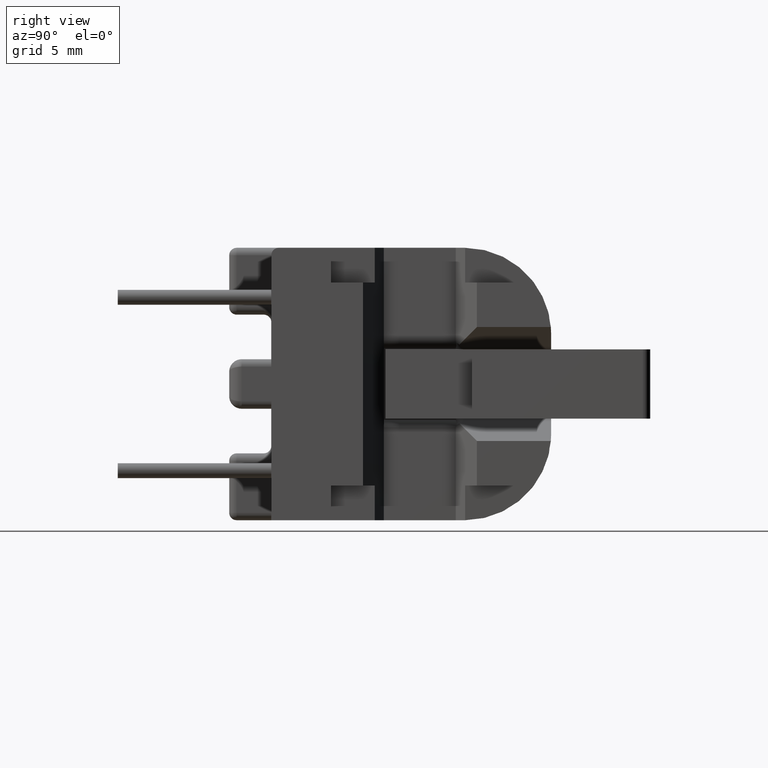
[diagram: clean part render]
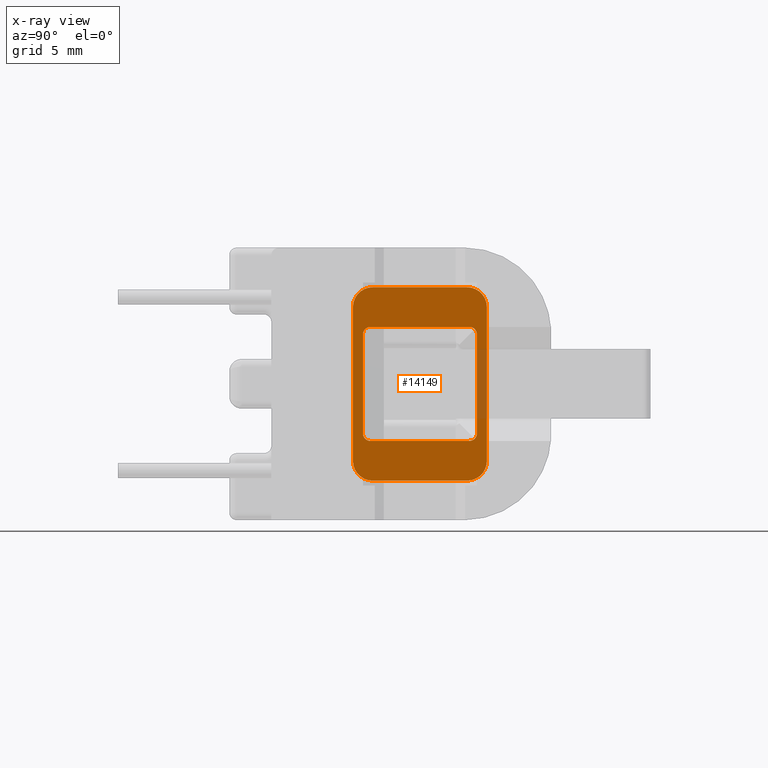
[diagram: x-ray — body ghosted, one internal face saturated and labeled with its STEP entity id]
A machine part, right view, then the same camera in x-ray: the body is ghosted and one INTERNAL B-rep face — a face not visible from any outside direction — is saturated and labeled: STEP entity #14149.
In plain terms, the highlighted planar face has unit normal (-1, 0, -0).
Its self-contained STEP definition (entity closure, byte-faithful):
#1 = VERTEX_POINT ( 'NONE', #24749 ) ;
#288 = LINE ( 'NONE', #4880, #1247 ) ;
#487 = EDGE_LOOP ( 'NONE', ( #21296, #20754, #19882, #31112, #20182, #19111, #1619, #16403 ) ) ;
#577 = CARTESIAN_POINT ( 'NONE',  ( 3.262499999999999734, 2.000000000000000000, 2.299999999999999822 ) ) ;
#1247 = VECTOR ( 'NONE', #7394, 1000.000000000000000 ) ;
#1264 = CIRCLE ( 'NONE', #29732, 0.2999999999999999334 ) ;
#1475 = CARTESIAN_POINT ( 'NONE',  ( 3.262499999999998845, 2.705000000000002292, 3.104999999999996874 ) ) ;
#1619 = ORIENTED_EDGE ( 'NONE', *, *, #23575, .F. ) ;
#1821 = VERTEX_POINT ( 'NONE', #17373 ) ;
#2206 = EDGE_CURVE ( 'NONE', #7733, #10146, #2822, .T. ) ;
#2775 = LINE ( 'NONE', #29223, #35532 ) ;
#2822 = LINE ( 'NONE', #12845, #30879 ) ;
#2921 = DIRECTION ( 'NONE',  ( 0.0000000000000000000, 0.0000000000000000000, 1.000000000000000000 ) ) ;
#2984 = DIRECTION ( 'NONE',  ( -1.000000000000000000, -0.0000000000000000000, -0.0000000000000000000 ) ) ;
#3062 = VECTOR ( 'NONE', #3199, 1000.000000000000000 ) ;
#3199 = DIRECTION ( 'NONE',  ( 0.0000000000000000000, 1.000000000000000000, 0.0000000000000000000 ) ) ;
#3657 = EDGE_CURVE ( 'NONE', #10146, #23283, #1264, .T. ) ;
#3900 = AXIS2_PLACEMENT_3D ( 'NONE', #29394, #11492, #26005 ) ;
#3989 = ORIENTED_EDGE ( 'NONE', *, *, #28928, .F. ) ;
#4445 = DIRECTION ( 'NONE',  ( 0.0000000000000000000, -1.000000000000000000, 0.0000000000000000000 ) ) ;
#4880 = CARTESIAN_POINT ( 'NONE',  ( 3.262499999999999289, -2.705000000000001403, -3.104999999999998206 ) ) ;
#5247 = CARTESIAN_POINT ( 'NONE',  ( 3.262499999999999734, 2.000000000000000000, -2.299999999999999822 ) ) ;
#5272 = VERTEX_POINT ( 'NONE', #13719 ) ;
#5469 = DIRECTION ( 'NONE',  ( 0.0000000000000000000, 0.0000000000000000000, -1.000000000000000000 ) ) ;
#5590 = EDGE_CURVE ( 'NONE', #29038, #1, #10242, .T. ) ;
#5834 = DIRECTION ( 'NONE',  ( 5.421010862427510337E-16, -5.421010862427510337E-15, -1.000000000000000000 ) ) ;
#6139 = AXIS2_PLACEMENT_3D ( 'NONE', #14874, #35786, #24000 ) ;
#7002 = LINE ( 'NONE', #32428, #12545 ) ;
#7394 = DIRECTION ( 'NONE',  ( -0.0000000000000000000, -1.396717774538492064E-16, 1.000000000000000000 ) ) ;
#7454 = VERTEX_POINT ( 'NONE', #1475 ) ;
#7466 = CARTESIAN_POINT ( 'NONE',  ( 3.262499999999999289, 1.904999999999998250, -3.905000000000001581 ) ) ;
#7733 = VERTEX_POINT ( 'NONE', #20590 ) ;
#8042 = CARTESIAN_POINT ( 'NONE',  ( 3.262499999999998845, 1.905000000000000915, -3.104999999999999538 ) ) ;
#8449 = DIRECTION ( 'NONE',  ( 0.0000000000000000000, 0.0000000000000000000, 1.000000000000000000 ) ) ;
#8546 = CIRCLE ( 'NONE', #34505, 0.8000000000000020428 ) ;
#8773 = EDGE_CURVE ( 'NONE', #18458, #25622, #7002, .T. ) ;
#8939 = DIRECTION ( 'NONE',  ( 1.000000000000000000, 0.0000000000000000000, 0.0000000000000000000 ) ) ;
#9288 = ORIENTED_EDGE ( 'NONE', *, *, #29273, .F. ) ;
#9737 = ORIENTED_EDGE ( 'NONE', *, *, #5590, .F. ) ;
#10146 = VERTEX_POINT ( 'NONE', #13200 ) ;
#10242 = LINE ( 'NONE', #17430, #14463 ) ;
#10714 = EDGE_CURVE ( 'NONE', #1821, #38745, #288, .T. ) ;
#10767 = CARTESIAN_POINT ( 'NONE',  ( 3.262499999999999734, 2.299999999999999822, 2.299999999999999822 ) ) ;
#11321 = VERTEX_POINT ( 'NONE', #18435 ) ;
#11443 = LINE ( 'NONE', #10767, #12795 ) ;
#11447 = CARTESIAN_POINT ( 'NONE',  ( 3.262499999999999734, 2.000000000000000000, -2.000000000000000000 ) ) ;
#11492 = DIRECTION ( 'NONE',  ( 1.000000000000000000, 0.0000000000000000000, 0.0000000000000000000 ) ) ;
#12034 = AXIS2_PLACEMENT_3D ( 'NONE', #25886, #19588, #34760 ) ;
#12545 = VECTOR ( 'NONE', #5469, 1000.000000000000000 ) ;
#12795 = VECTOR ( 'NONE', #16767, 1000.000000000000000 ) ;
#12813 = VERTEX_POINT ( 'NONE', #27540 ) ;
#12845 = CARTESIAN_POINT ( 'NONE',  ( 3.262499999999999734, 2.299999999999999822, 2.299999999999999822 ) ) ;
#12996 = VERTEX_POINT ( 'NONE', #22752 ) ;
#13200 = CARTESIAN_POINT ( 'NONE',  ( 3.262499999999999734, 2.299999999999999822, 2.000000000000000000 ) ) ;
#13685 = VERTEX_POINT ( 'NONE', #18250 ) ;
#13719 = CARTESIAN_POINT ( 'NONE',  ( 3.262499999999999734, -2.000000000000000000, -2.299999999999999822 ) ) ;
#13851 = VECTOR ( 'NONE', #4445, 1000.000000000000000 ) ;
#14149 = ADVANCED_FACE ( 'NONE', ( #18412, #28716 ), #35918, .F. ) ;
#14463 = VECTOR ( 'NONE', #14920, 1000.000000000000000 ) ;
#14487 = DIRECTION ( 'NONE',  ( 5.421010862427510337E-16, -1.000000000000000000, 3.252606517456506202E-15 ) ) ;
#14874 = CARTESIAN_POINT ( 'NONE',  ( 3.262499999999999289, 0.0000000000000000000, 0.0000000000000000000 ) ) ;
#14920 = DIRECTION ( 'NONE',  ( -0.0000000000000000000, 1.000000000000000000, 2.276539994720218363E-16 ) ) ;
#15250 = CIRCLE ( 'NONE', #3900, 0.2999999999999999334 ) ;
#15458 = AXIS2_PLACEMENT_3D ( 'NONE', #11447, #26335, #8449 ) ;
#16276 = DIRECTION ( 'NONE',  ( 0.0000000000000000000, 0.0000000000000000000, 1.000000000000000000 ) ) ;
#16327 = CIRCLE ( 'NONE', #33897, 0.2999999999999999334 ) ;
#16390 = CIRCLE ( 'NONE', #27993, 0.8000000000000017097 ) ;
#16403 = ORIENTED_EDGE ( 'NONE', *, *, #27456, .F. ) ;
#16519 = ORIENTED_EDGE ( 'NONE', *, *, #35014, .F. ) ;
#16767 = DIRECTION ( 'NONE',  ( 0.0000000000000000000, -1.000000000000000000, 0.0000000000000000000 ) ) ;
#17373 = CARTESIAN_POINT ( 'NONE',  ( 3.262499999999998845, -2.705000000000000959, -3.104999999999998206 ) ) ;
#17430 = CARTESIAN_POINT ( 'NONE',  ( 3.262499999999999289, -1.904999999999997362, 3.905000000000000249 ) ) ;
#17522 = DIRECTION ( 'NONE',  ( 0.0000000000000000000, 1.396717774538492311E-16, -1.000000000000000000 ) ) ;
#17729 = DIRECTION ( 'NONE',  ( -1.000000000000000000, -0.0000000000000000000, 0.0000000000000000000 ) ) ;
#18250 = CARTESIAN_POINT ( 'NONE',  ( 3.262499999999999289, -1.905000000000003579, -3.905000000000001581 ) ) ;
#18412 = FACE_OUTER_BOUND ( 'NONE', #33278, .T. ) ;
#18435 = CARTESIAN_POINT ( 'NONE',  ( 3.262499999999999289, 2.705000000000003180, -3.104999999999998206 ) ) ;
#18458 = VERTEX_POINT ( 'NONE', #29757 ) ;
#18892 = CARTESIAN_POINT ( 'NONE',  ( 3.262499999999999734, -2.299999999999999822, -2.000000000000000000 ) ) ;
#19111 = ORIENTED_EDGE ( 'NONE', *, *, #2206, .F. ) ;
#19195 = CIRCLE ( 'NONE', #12034, 0.8000000000000020428 ) ;
#19588 = DIRECTION ( 'NONE',  ( -1.000000000000000000, -0.0000000000000000000, 0.0000000000000000000 ) ) ;
#19606 = ORIENTED_EDGE ( 'NONE', *, *, #19999, .F. ) ;
#19846 = CARTESIAN_POINT ( 'NONE',  ( 3.262499999999999734, -2.000000000000000000, 2.299999999999999822 ) ) ;
#19882 = ORIENTED_EDGE ( 'NONE', *, *, #29491, .F. ) ;
#19999 = EDGE_CURVE ( 'NONE', #11321, #12813, #8546, .T. ) ;
#20182 = ORIENTED_EDGE ( 'NONE', *, *, #3657, .F. ) ;
#20390 = VECTOR ( 'NONE', #17522, 1000.000000000000000 ) ;
#20447 = EDGE_CURVE ( 'NONE', #1, #7454, #19195, .T. ) ;
#20590 = CARTESIAN_POINT ( 'NONE',  ( 3.262499999999999734, 2.299999999999999822, -2.000000000000000000 ) ) ;
#20754 = ORIENTED_EDGE ( 'NONE', *, *, #8773, .F. ) ;
#21296 = ORIENTED_EDGE ( 'NONE', *, *, #30462, .F. ) ;
#21950 = CARTESIAN_POINT ( 'NONE',  ( 3.262499999999998845, -1.904999999999997362, 3.905000000000000693 ) ) ;
#22752 = CARTESIAN_POINT ( 'NONE',  ( 3.262499999999999289, 2.705000000000002736, 0.0000000000000000000 ) ) ;
#23283 = VERTEX_POINT ( 'NONE', #577 ) ;
#23575 = EDGE_CURVE ( 'NONE', #28029, #7733, #29267, .T. ) ;
#24000 = DIRECTION ( 'NONE',  ( -0.0000000000000000000, 0.0000000000000000000, 1.000000000000000000 ) ) ;
#24749 = CARTESIAN_POINT ( 'NONE',  ( 3.262499999999999289, 1.905000000000002691, 3.905000000000001137 ) ) ;
#25622 = VERTEX_POINT ( 'NONE', #18892 ) ;
#25886 = CARTESIAN_POINT ( 'NONE',  ( 3.262499999999998845, 1.905000000000000027, 3.104999999999998650 ) ) ;
#26005 = DIRECTION ( 'NONE',  ( 0.0000000000000000000, 0.0000000000000000000, 1.000000000000000000 ) ) ;
#26335 = DIRECTION ( 'NONE',  ( 1.000000000000000000, 0.0000000000000000000, 0.0000000000000000000 ) ) ;
#26609 = CARTESIAN_POINT ( 'NONE',  ( 3.262499999999998845, -1.905000000000000027, 3.104999999999998650 ) ) ;
#26947 = DIRECTION ( 'NONE',  ( 1.000000000000000000, 0.0000000000000000000, 0.0000000000000000000 ) ) ;
#27275 = ORIENTED_EDGE ( 'NONE', *, *, #36435, .F. ) ;
#27420 = ORIENTED_EDGE ( 'NONE', *, *, #10714, .F. ) ;
#27456 = EDGE_CURVE ( 'NONE', #5272, #28029, #27836, .T. ) ;
#27540 = CARTESIAN_POINT ( 'NONE',  ( 3.262499999999998845, 1.904999999999998250, -3.905000000000001581 ) ) ;
#27836 = LINE ( 'NONE', #30113, #3062 ) ;
#27865 = EDGE_CURVE ( 'NONE', #23283, #35132, #11443, .T. ) ;
#27993 = AXIS2_PLACEMENT_3D ( 'NONE', #26609, #17729, #14487 ) ;
#28029 = VERTEX_POINT ( 'NONE', #5247 ) ;
#28716 = FACE_BOUND ( 'NONE', #487, .T. ) ;
#28928 = EDGE_CURVE ( 'NONE', #38745, #29038, #16390, .T. ) ;
#28946 = DIRECTION ( 'NONE',  ( -1.000000000000000000, -0.0000000000000000000, -0.0000000000000000000 ) ) ;
#29038 = VERTEX_POINT ( 'NONE', #21950 ) ;
#29223 = CARTESIAN_POINT ( 'NONE',  ( 3.262499999999999289, 2.705000000000002292, 3.104999999999996430 ) ) ;
#29267 = CIRCLE ( 'NONE', #15458, 0.2999999999999999334 ) ;
#29273 = EDGE_CURVE ( 'NONE', #7454, #12996, #2775, .T. ) ;
#29394 = CARTESIAN_POINT ( 'NONE',  ( 3.262499999999999734, -2.000000000000000000, -2.000000000000000000 ) ) ;
#29491 = EDGE_CURVE ( 'NONE', #35132, #18458, #16327, .T. ) ;
#29732 = AXIS2_PLACEMENT_3D ( 'NONE', #29964, #26947, #36242 ) ;
#29757 = CARTESIAN_POINT ( 'NONE',  ( 3.262499999999999734, -2.299999999999999822, 2.000000000000000000 ) ) ;
#29777 = CARTESIAN_POINT ( 'NONE',  ( 3.262499999999998845, -1.904999999999999138, -3.105000000000000426 ) ) ;
#29964 = CARTESIAN_POINT ( 'NONE',  ( 3.262499999999999734, 2.000000000000000000, 2.000000000000000000 ) ) ;
#30113 = CARTESIAN_POINT ( 'NONE',  ( 3.262499999999999734, 2.299999999999999822, -2.299999999999999822 ) ) ;
#30205 = LINE ( 'NONE', #38062, #20390 ) ;
#30462 = EDGE_CURVE ( 'NONE', #25622, #5272, #15250, .T. ) ;
#30489 = EDGE_CURVE ( 'NONE', #12996, #11321, #30205, .T. ) ;
#30656 = ORIENTED_EDGE ( 'NONE', *, *, #30489, .F. ) ;
#30831 = AXIS2_PLACEMENT_3D ( 'NONE', #29777, #2984, #5834 ) ;
#30879 = VECTOR ( 'NONE', #16276, 1000.000000000000000 ) ;
#31074 = ORIENTED_EDGE ( 'NONE', *, *, #20447, .F. ) ;
#31112 = ORIENTED_EDGE ( 'NONE', *, *, #27865, .F. ) ;
#31943 = DIRECTION ( 'NONE',  ( 5.421010862427508365E-16, 1.000000000000000000, -8.131516293641262745E-15 ) ) ;
#32428 = CARTESIAN_POINT ( 'NONE',  ( 3.262499999999999734, -2.299999999999999822, 2.299999999999999822 ) ) ;
#32703 = CARTESIAN_POINT ( 'NONE',  ( 3.262499999999999734, -2.000000000000000000, 2.000000000000000000 ) ) ;
#33278 = EDGE_LOOP ( 'NONE', ( #19606, #30656, #9288, #31074, #9737, #3989, #27420, #27275, #16519 ) ) ;
#33897 = AXIS2_PLACEMENT_3D ( 'NONE', #32703, #8939, #2921 ) ;
#34505 = AXIS2_PLACEMENT_3D ( 'NONE', #8042, #28946, #31943 ) ;
#34760 = DIRECTION ( 'NONE',  ( 5.421010862427508365E-16, 3.252606517456505019E-15, 1.000000000000000000 ) ) ;
#34957 = DIRECTION ( 'NONE',  ( 0.0000000000000000000, 1.396717774538492311E-16, -1.000000000000000000 ) ) ;
#35014 = EDGE_CURVE ( 'NONE', #12813, #13685, #35850, .T. ) ;
#35132 = VERTEX_POINT ( 'NONE', #19846 ) ;
#35532 = VECTOR ( 'NONE', #34957, 1000.000000000000000 ) ;
#35786 = DIRECTION ( 'NONE',  ( -1.000000000000000000, 0.0000000000000000000, -0.0000000000000000000 ) ) ;
#35850 = LINE ( 'NONE', #7466, #13851 ) ;
#35918 = PLANE ( 'NONE',  #6139 ) ;
#36165 = CARTESIAN_POINT ( 'NONE',  ( 3.262499999999999289, -2.705000000000002292, 3.105000000000001759 ) ) ;
#36242 = DIRECTION ( 'NONE',  ( 0.0000000000000000000, 0.0000000000000000000, 1.000000000000000000 ) ) ;
#36435 = EDGE_CURVE ( 'NONE', #13685, #1821, #37984, .T. ) ;
#37984 = CIRCLE ( 'NONE', #30831, 0.8000000000000017097 ) ;
#38062 = CARTESIAN_POINT ( 'NONE',  ( 3.262499999999999289, 2.705000000000002736, 0.0000000000000000000 ) ) ;
#38745 = VERTEX_POINT ( 'NONE', #36165 ) ;